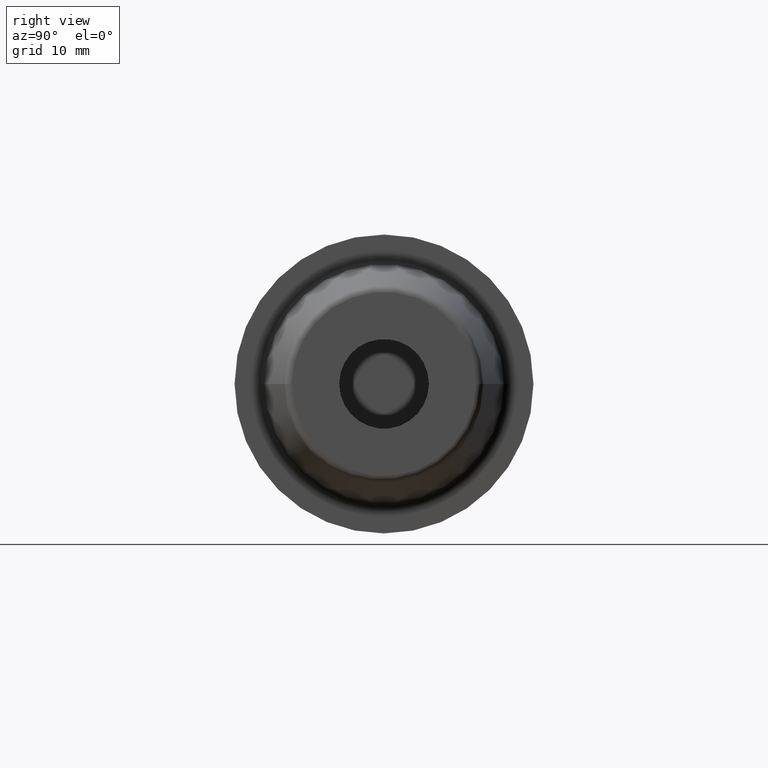
[diagram: clean part render]
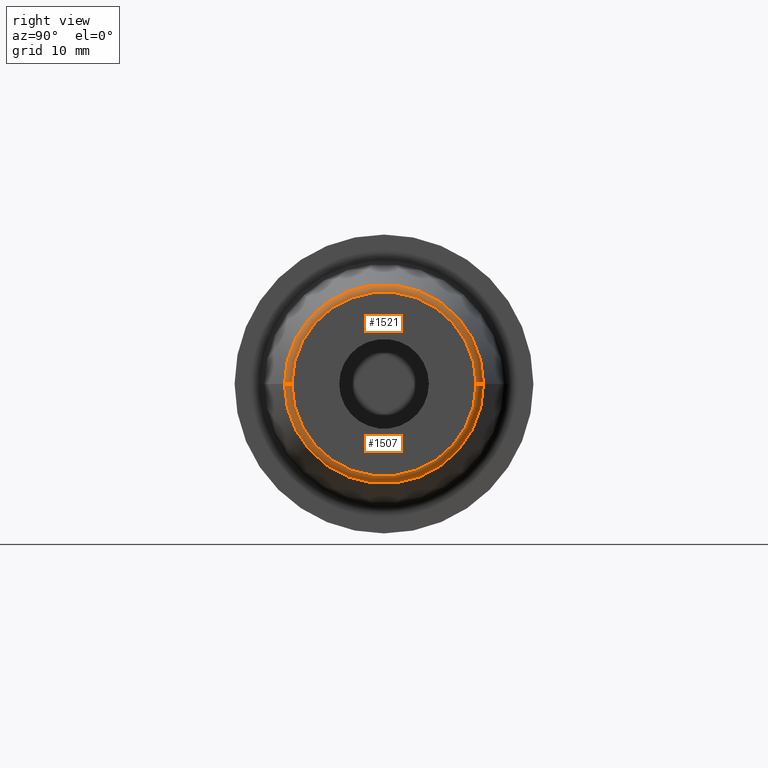
[diagram: same view with one multi-face feature highlighted, each face labeled with its STEP entity id]
A machine part, right view. The highlighted faces form ONE feature: a constant-radius fillet chain: 2 tangent blend faces with common blend radius 1 mm. The faces share edges in the B-rep.
Their STEP definitions:
[1] entity #1507 (Torus):
#512=CARTESIAN_POINT('',(5.907845909573E1,0.E0,0.E0));
#513=DIRECTION('',(-1.E0,0.E0,0.E0));
#514=DIRECTION('',(0.E0,1.E0,0.E0));
#515=AXIS2_PLACEMENT_3D('',#512,#513,#514);
#525=CARTESIAN_POINT('',(5.9E1,1.232560950834E1,1.596273807580E-11));
#526=DIRECTION('',(0.E0,1.295086433928E-12,-1.E0));
#527=DIRECTION('',(7.845909572792E-2,9.969173337331E-1,1.291094114665E-12));
#528=AXIS2_PLACEMENT_3D('',#525,#526,#527);
#530=CARTESIAN_POINT('',(5.9E1,-1.232560950834E1,-1.596164866946E-11));
#531=DIRECTION('',(0.E0,-1.294997963031E-12,1.E0));
#532=DIRECTION('',(7.845909572792E-2,-9.969173337331E-1,-1.291005916494E-12));
#533=AXIS2_PLACEMENT_3D('',#530,#531,#532);
#540=CARTESIAN_POINT('',(6.E1,0.E0,0.E0));
#541=DIRECTION('',(-1.E0,0.E0,0.E0));
#542=DIRECTION('',(0.E0,1.E0,0.E0));
#543=AXIS2_PLACEMENT_3D('',#540,#541,#542);
#686=CARTESIAN_POINT('',(5.907845909573E1,1.332252684207E1,0.E0));
#687=CARTESIAN_POINT('',(5.907845909573E1,-1.332252684207E1,0.E0));
#688=VERTEX_POINT('',#686);
#689=VERTEX_POINT('',#687);
#690=CARTESIAN_POINT('',(6.E1,1.232560950834E1,-1.264421099618E-14));
#691=CARTESIAN_POINT('',(6.E1,-1.232560950834E1,1.113475917298E-14));
#692=VERTEX_POINT('',#690);
#693=VERTEX_POINT('',#691);
#1493=CARTESIAN_POINT('',(5.9E1,0.E0,0.E0));
#1494=DIRECTION('',(1.E0,0.E0,0.E0));
#1495=DIRECTION('',(0.E0,9.999872246812E-1,5.054747705322E-3));
#1496=AXIS2_PLACEMENT_3D('',#1493,#1494,#1495);
#1497=TOROIDAL_SURFACE('',#1496,1.232560950834E1,1.E0);
#1498=ORIENTED_EDGE('',*,*,#1483,.T.);
#1500=ORIENTED_EDGE('',*,*,#1499,.T.);
#1502=ORIENTED_EDGE('',*,*,#1501,.F.);
#1504=ORIENTED_EDGE('',*,*,#1503,.F.);
#1505=EDGE_LOOP('',(#1498,#1500,#1502,#1504));
#1506=FACE_OUTER_BOUND('',#1505,.F.);
#1507=ADVANCED_FACE('',(#1506),#1497,.T.);
#516=CIRCLE('',#515,1.332252684207E1);
#529=CIRCLE('',#528,1.E0);
#534=CIRCLE('',#533,1.E0);
#544=CIRCLE('',#543,1.232560950834E1);
#1483=EDGE_CURVE('',#688,#689,#516,.T.);
#1499=EDGE_CURVE('',#689,#693,#534,.T.);
#1501=EDGE_CURVE('',#692,#693,#544,.T.);
#1503=EDGE_CURVE('',#688,#692,#529,.T.);
[2] entity #1521 (Torus):
#525=CARTESIAN_POINT('',(5.9E1,1.232560950834E1,1.596273807580E-11));
#526=DIRECTION('',(0.E0,1.295086433928E-12,-1.E0));
#527=DIRECTION('',(7.845909572792E-2,9.969173337331E-1,1.291094114665E-12));
#528=AXIS2_PLACEMENT_3D('',#525,#526,#527);
#530=CARTESIAN_POINT('',(5.9E1,-1.232560950834E1,-1.596164866946E-11));
#531=DIRECTION('',(0.E0,-1.294997963031E-12,1.E0));
#532=DIRECTION('',(7.845909572792E-2,-9.969173337331E-1,-1.291005916494E-12));
#533=AXIS2_PLACEMENT_3D('',#530,#531,#532);
#535=CARTESIAN_POINT('',(5.907845909573E1,0.E0,0.E0));
#536=DIRECTION('',(-1.E0,0.E0,0.E0));
#537=DIRECTION('',(0.E0,-1.E0,0.E0));
#538=AXIS2_PLACEMENT_3D('',#535,#536,#537);
#545=CARTESIAN_POINT('',(6.E1,0.E0,0.E0));
#546=DIRECTION('',(-1.E0,0.E0,0.E0));
#547=DIRECTION('',(0.E0,-1.E0,0.E0));
#548=AXIS2_PLACEMENT_3D('',#545,#546,#547);
#686=CARTESIAN_POINT('',(5.907845909573E1,1.332252684207E1,0.E0));
#687=CARTESIAN_POINT('',(5.907845909573E1,-1.332252684207E1,0.E0));
#688=VERTEX_POINT('',#686);
#689=VERTEX_POINT('',#687);
#690=CARTESIAN_POINT('',(6.E1,1.232560950834E1,-1.264421099618E-14));
#691=CARTESIAN_POINT('',(6.E1,-1.232560950834E1,1.113475917298E-14));
#692=VERTEX_POINT('',#690);
#693=VERTEX_POINT('',#691);
#1508=CARTESIAN_POINT('',(5.9E1,0.E0,0.E0));
#1509=DIRECTION('',(1.E0,0.E0,0.E0));
#1510=DIRECTION('',(0.E0,-9.999872246812E-1,-5.054747705321E-3));
#1511=AXIS2_PLACEMENT_3D('',#1508,#1509,#1510);
#1512=TOROIDAL_SURFACE('',#1511,1.232560950834E1,1.E0);
#1514=ORIENTED_EDGE('',*,*,#1513,.T.);
#1515=ORIENTED_EDGE('',*,*,#1503,.T.);
#1517=ORIENTED_EDGE('',*,*,#1516,.F.);
#1518=ORIENTED_EDGE('',*,*,#1499,.F.);
#1519=EDGE_LOOP('',(#1514,#1515,#1517,#1518));
#1520=FACE_OUTER_BOUND('',#1519,.F.);
#1521=ADVANCED_FACE('',(#1520),#1512,.T.);
#529=CIRCLE('',#528,1.E0);
#534=CIRCLE('',#533,1.E0);
#539=CIRCLE('',#538,1.332252684207E1);
#549=CIRCLE('',#548,1.232560950834E1);
#1499=EDGE_CURVE('',#689,#693,#534,.T.);
#1503=EDGE_CURVE('',#688,#692,#529,.T.);
#1513=EDGE_CURVE('',#689,#688,#539,.T.);
#1516=EDGE_CURVE('',#693,#692,#549,.T.);